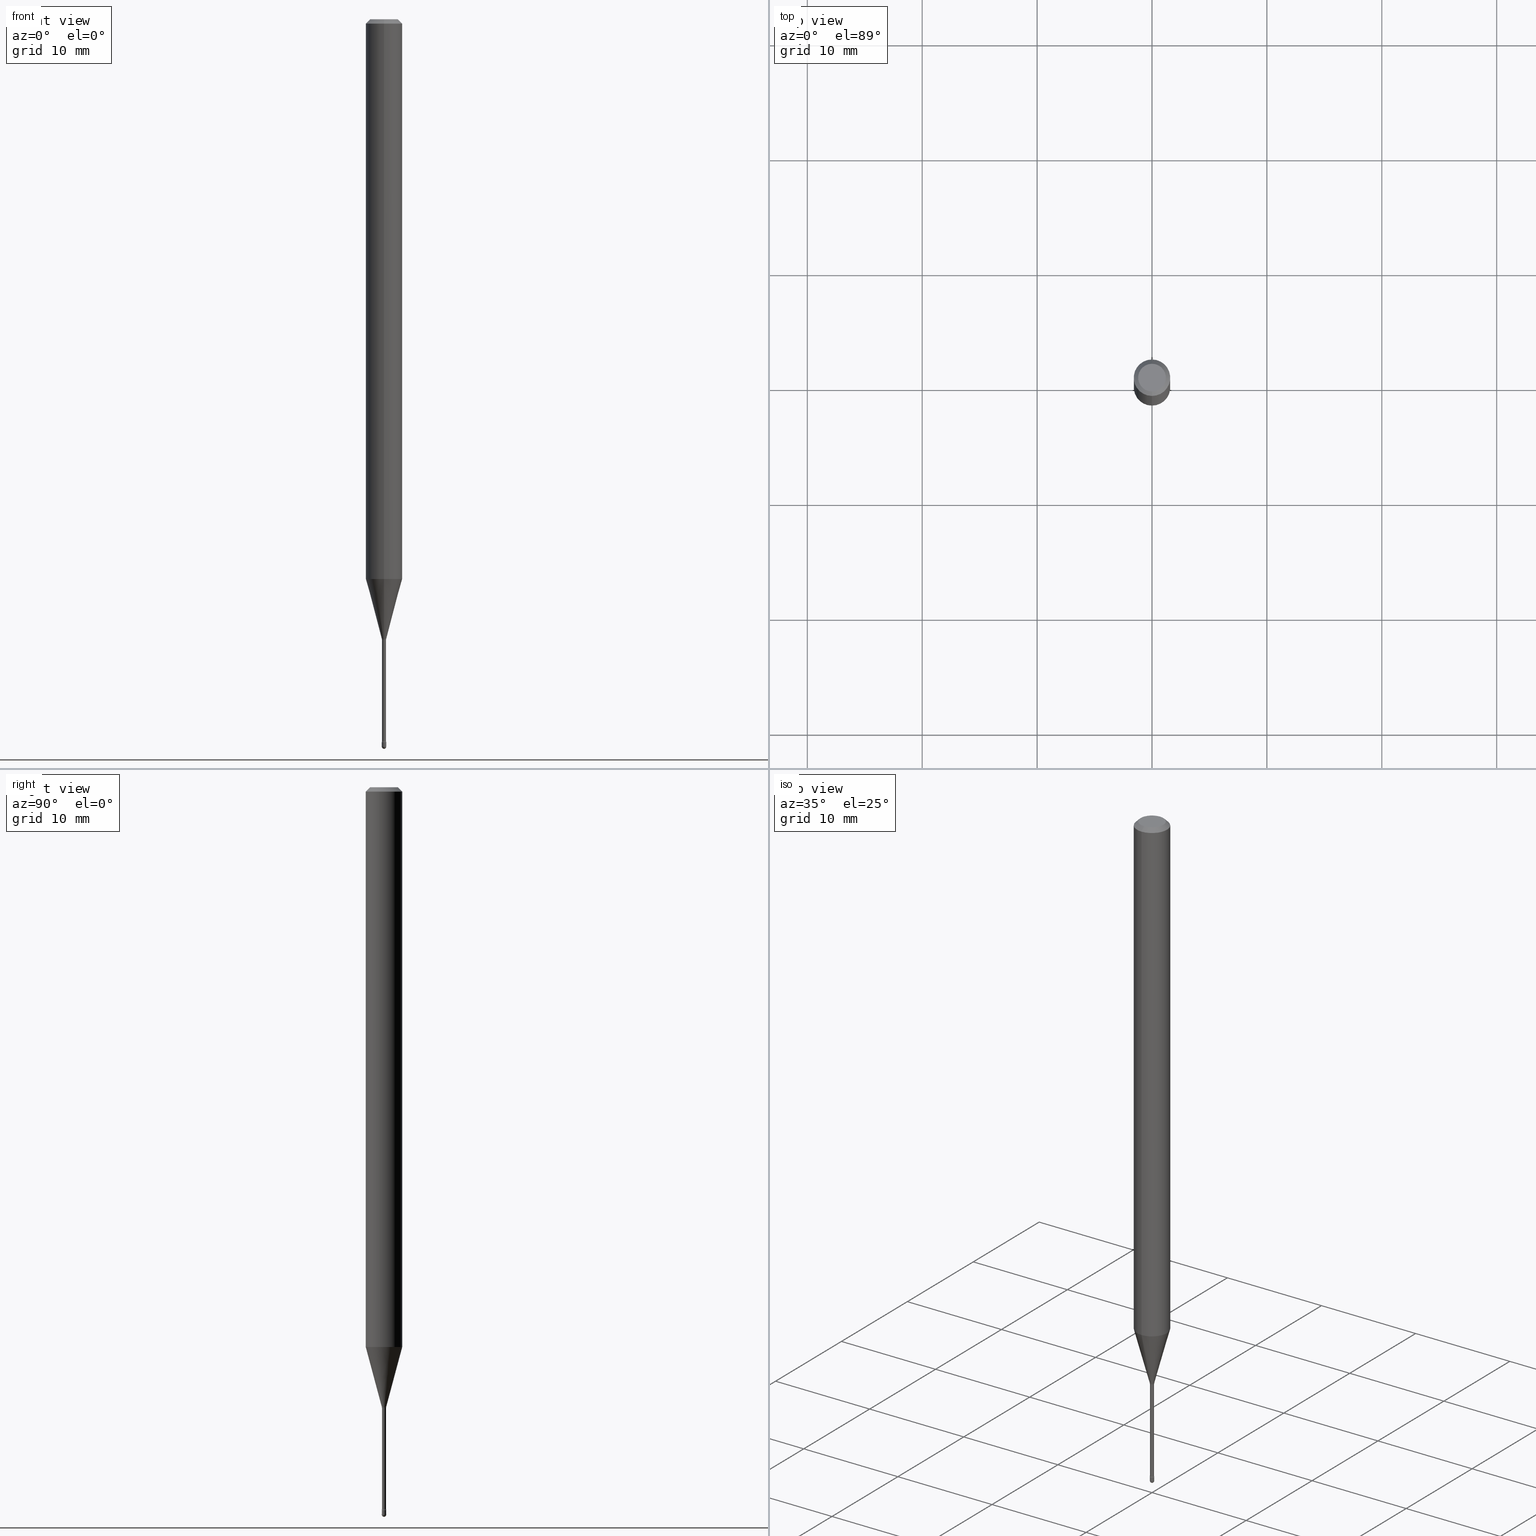
[diagram: canonical four-view strip — front | top / right | iso, engineering-drawing reading convention]
A machine part, canonical four-view strip (front | top / right | iso — engineering-drawing reading convention). The complete STEP part file that produces these views, byte-faithful:
ISO-10303-21;
HEADER;
FILE_DESCRIPTION (( 'STEP AP203' ),
    '1' );
FILE_NAME ('09416.STEP',
    '2024-04-09T22:54:44',
    ( '' ),
    ( '' ),
    'SwSTEP 2.0',
    'SolidWorks 2023',
    '' );
FILE_SCHEMA (( 'CONFIG_CONTROL_DESIGN' ));
ENDSEC;

DATA;
#1 = ORIENTED_EDGE ( 'NONE', *, *, #65, .T. ) ;
#2 = AXIS2_PLACEMENT_3D ( 'NONE', #550, #464, #511 ) ;
#3 = FACE_OUTER_BOUND ( 'NONE', #189, .T. ) ;
#4 = CC_DESIGN_SECURITY_CLASSIFICATION ( #139, ( #501 ) ) ;
#5 = EDGE_LOOP ( 'NONE', ( #183, #408, #120, #538 ) ) ;
#6 = DIRECTION ( 'NONE',  ( -2.445435438683695197E-29, 3.491529123004369972E-15, 1.000000000000000000 ) ) ;
#7 = ADVANCED_FACE ( 'NONE', ( #83 ), #306, .T. ) ;
#8 = CC_DESIGN_PERSON_AND_ORGANIZATION_ASSIGNMENT ( #503, #428, ( #501 ) ) ;
#9 = ORIENTED_EDGE ( 'NONE', *, *, #393, .T. ) ;
#10 = DIRECTION ( 'NONE',  ( -2.438088387897960049E-29, 3.491481338843145188E-15, 1.000000000000000000 ) ) ;
#11 = ORIENTED_EDGE ( 'NONE', *, *, #390, .F. ) ;
#12 = CARTESIAN_POINT ( 'NONE',  ( -4.922988687768817558E-17, -0.007050000000000000711, 5.026886792084268241E-16 ) ) ;
#13 = LOCAL_TIME ( 18, 54, 44.00000000000000000, #300 ) ;
#14 = ORIENTED_EDGE ( 'NONE', *, *, #318, .F. ) ;
#15 = EDGE_CURVE ( 'NONE', #209, #173, #378, .T. ) ;
#16 = CARTESIAN_POINT ( 'NONE',  ( 5.372493636223851277E-17, 0.007561112605656562270, -2.123092501787273267 ) ) ;
#17 = CARTESIAN_POINT ( 'NONE',  ( -3.773273898774340269E-16, -0.04749999999999999362, 8.310287101882037742E-17 ) ) ;
#18 = CLOSED_SHELL ( 'NONE', ( #185, #476, #376, #354, #419, #145, #33, #49, #533, #539, #62, #478, #330, #516 ) ) ;
#19 = CALENDAR_DATE ( 2024, 9, 4 ) ;
#20 = AXIS2_PLACEMENT_3D ( 'NONE', #174, #520, #555 ) ;
#21 = EDGE_CURVE ( 'NONE', #104, #424, #344, .T. ) ;
#22 = DIRECTION ( 'NONE',  ( -2.445435438683695197E-29, 3.491529123004369972E-15, 1.000000000000000000 ) ) ;
#23 = EDGE_CURVE ( 'NONE', #548, #559, #527, .T. ) ;
#24 = DIRECTION ( 'NONE',  ( -2.445435438683695197E-29, 3.491529123004369972E-15, 1.000000000000000000 ) ) ;
#25 = DIRECTION ( 'NONE',  ( -2.445435438683695197E-29, 3.491529123004369972E-15, 1.000000000000000000 ) ) ;
#26 = VERTEX_POINT ( 'NONE', #444 ) ;
#27 = PERSON_AND_ORGANIZATION ( #82, #443 ) ;
#28 = CARTESIAN_POINT ( 'NONE',  ( 6.095330999416453954E-29, -8.702517237066541600E-15, -2.492500000000000160 ) ) ;
#29 = VERTEX_POINT ( 'NONE', #441 ) ;
#30 = PERSON_AND_ORGANIZATION ( #82, #443 ) ;
#31 = CIRCLE ( 'NONE', #179, 0.01500000000000001506 ) ;
#32 = AXIS2_PLACEMENT_3D ( 'NONE', #54, #90, #225 ) ;
#33 = ADVANCED_FACE ( 'NONE', ( #51 ), #535, .T. ) ;
#34 = LOCAL_TIME ( 18, 54, 44.00000000000000000, #417 ) ;
#35 = DIRECTION ( 'NONE',  ( 1.000000000000000000, 0.000000000000000000, 0.000000000000000000 ) ) ;
#36 = EDGE_LOOP ( 'NONE', ( #456, #381 ) ) ;
#37 = PERSON_AND_ORGANIZATION_ROLE ( 'creator' ) ;
#38 = DIRECTION ( 'NONE',  ( -2.445435438683695197E-29, 3.491529123004369972E-15, 1.000000000000000000 ) ) ;
#39 = CARTESIAN_POINT ( 'NONE',  ( 3.668153158025562537E-31, -5.237293684506583702E-17, -0.01500000000000008271 ) ) ;
#40 = DIRECTION ( 'NONE',  ( 1.000000000000000000, -6.982962677686266711E-15, 4.876176775795935793E-29 ) ) ;
#41 = ORIENTED_EDGE ( 'NONE', *, *, #465, .F. ) ;
#42 = FACE_OUTER_BOUND ( 'NONE', #36, .T. ) ;
#43 = DIRECTION ( 'NONE',  ( -2.445435438683694917E-29, 3.491529123004369972E-15, 1.000000000000000000 ) ) ;
#44 = DIRECTION ( 'NONE',  ( -6.982962677686265922E-15, -1.000000000000000000, 3.491529123004369972E-15 ) ) ;
#45 = DIRECTION ( 'NONE',  ( 0.000000000000000000, 0.000000000000000000, 1.000000000000000000 ) ) ;
#46 = AXIS2_PLACEMENT_3D ( 'NONE', #305, #45, #35 ) ;
#47 = EDGE_CURVE ( 'NONE', #407, #29, #226, .T. ) ;
#48 = DIRECTION ( 'NONE',  ( -6.982962677686266711E-15, -1.000000000000000000, 3.491529123004370367E-15 ) ) ;
#49 = ADVANCED_FACE ( 'NONE', ( #309 ), #258, .T. ) ;
#50 = CARTESIAN_POINT ( 'NONE',  ( -4.364351673553912750E-16, -0.06250000000000005551, -0.01499999999999986587 ) ) ;
#51 = FACE_OUTER_BOUND ( 'NONE', #334, .T. ) ;
#52 = DIRECTION ( 'NONE',  ( -1.000000000000000000, 6.982962677686265922E-15, -4.883557194083112340E-29 ) ) ;
#53 = CARTESIAN_POINT ( 'NONE',  ( 5.237222008270768592E-17, 0.007499999999991259318, -2.492500000000000160 ) ) ;
#54 = CARTESIAN_POINT ( 'NONE',  ( 5.191885643474223974E-29, -7.412839300822471210E-15, -2.123092501787273267 ) ) ;
#55 = EDGE_CURVE ( 'NONE', #447, #424, #31, .T. ) ;
#56 = PERSON_AND_ORGANIZATION ( #82, #443 ) ;
#57 = VECTOR ( 'NONE', #84, 39.37007874015748143 ) ;
#58 = CARTESIAN_POINT ( 'NONE',  ( 3.668153158025562537E-31, -5.237293684506583702E-17, -0.01500000000000008271 ) ) ;
#59 =( GEOMETRIC_REPRESENTATION_CONTEXT ( 3 ) GLOBAL_UNCERTAINTY_ASSIGNED_CONTEXT ( ( #238 ) ) GLOBAL_UNIT_ASSIGNED_CONTEXT ( ( #248, #260, #311 ) ) REPRESENTATION_CONTEXT ( 'NONE', 'WORKASPACE' ) );
#60 = ORIENTED_EDGE ( 'NONE', *, *, #176, .T. ) ;
#61 = EDGE_LOOP ( 'NONE', ( #338, #239, #452, #328 ) ) ;
#62 = ADVANCED_FACE ( 'NONE', ( #513 ), #519, .F. ) ;
#63 = ORIENTED_EDGE ( 'NONE', *, *, #55, .F. ) ;
#64 = DIRECTION ( 'NONE',  ( 6.982962677686265922E-15, 1.000000000000000000, 0.000000000000000000 ) ) ;
#65 = EDGE_CURVE ( 'NONE', #396, #209, #498, .T. ) ;
#66 = VECTOR ( 'NONE', #545, 39.37007874015748143 ) ;
#67 = AXIS2_PLACEMENT_3D ( 'NONE', #89, #212, #342 ) ;
#68 = ORIENTED_EDGE ( 'NONE', *, *, #221, .F. ) ;
#69 = CARTESIAN_POINT ( 'NONE',  ( -5.279896712708277390E-17, -0.007561112605671388952, -2.123092501787273267 ) ) ;
#70 = DIRECTION ( 'NONE',  ( -6.982962677686265133E-15, -1.000000000000000000, 3.491529123004366422E-15 ) ) ;
#71 = EDGE_CURVE ( 'NONE', #26, #110, #418, .T. ) ;
#72 = CARTESIAN_POINT ( 'NONE',  ( 2.489070731061741995E-16, 0.007561112605656562270, -2.123092501787273267 ) ) ;
#73 = CIRCLE ( 'NONE', #507, 0.01500000000000001506 ) ;
#74 = ORIENTED_EDGE ( 'NONE', *, *, #526, .T. ) ;
#75 = CARTESIAN_POINT ( 'NONE',  ( 6.113992702821284393E-29, -8.728244104558185096E-15, -2.500000000000000000 ) ) ;
#76 = ORIENTED_EDGE ( 'NONE', *, *, #256, .T. ) ;
#77 = DIRECTION ( 'NONE',  ( 1.000000000000000000, -6.982962677686269077E-15, 0.000000000000000000 ) ) ;
#78 = DIRECTION ( 'NONE',  ( -2.445468806185136597E-29, 3.491481338843145583E-15, 1.000000000000000000 ) ) ;
#79 = ORIENTED_EDGE ( 'NONE', *, *, #322, .T. ) ;
#80 = EDGE_CURVE ( 'NONE', #110, #166, #287, .T. ) ;
#81 = COORDINATED_UNIVERSAL_TIME_OFFSET ( 5, 0, .BEHIND. ) ;
#82 = PERSON ( 'UNSPECIFIED', 'UNSPECIFIED', 'UNSPECIFIED', ('UNSPECIFIED'), ('UNSPECIFIED'), ('UNSPECIFIED') ) ;
#83 = FACE_OUTER_BOUND ( 'NONE', #5, .T. ) ;
#84 = DIRECTION ( 'NONE',  ( -2.445435438683695197E-29, 3.491529123004369972E-15, 1.000000000000000000 ) ) ;
#85 = APPROVAL_STATUS ( 'not_yet_approved' ) ;
#86 = AXIS2_PLACEMENT_3D ( 'NONE', #92, #482, #268 ) ;
#87 = AXIS2_PLACEMENT_3D ( 'NONE', #141, #279, #406 ) ;
#88 = AXIS2_PLACEMENT_3D ( 'NONE', #336, #78, #40 ) ;
#89 = CARTESIAN_POINT ( 'NONE',  ( 6.057343581619512225E-29, -8.648517637681823363E-15, -2.476999999999999869 ) ) ;
#90 = DIRECTION ( 'NONE',  ( -2.445435438683695197E-29, 3.491529123004369972E-15, 1.000000000000000000 ) ) ;
#91 = CARTESIAN_POINT ( 'NONE',  ( 1.566746732351540830E-16, 0.02204999999999257207, -2.126974787463811190 ) ) ;
#92 = CARTESIAN_POINT ( 'NONE',  ( 6.057343581619512225E-29, -8.648517637681823363E-15, -2.476999999999999869 ) ) ;
#93 = DIRECTION ( 'NONE',  ( -2.445435438683695197E-29, 3.491529123004369972E-15, 1.000000000000000000 ) ) ;
#94 = EDGE_CURVE ( 'NONE', #166, #110, #321, .T. ) ;
#95 = MANIFOLD_SOLID_BREP ( 'Body-Move/Copy2[2]', #18 ) ;
#96 = ORIENTED_EDGE ( 'NONE', *, *, #517, .F. ) ;
#97 = CARTESIAN_POINT ( 'NONE',  ( 5.191885643474223974E-29, -7.412839300822471210E-15, -2.123092501787273267 ) ) ;
#98 = AXIS2_PLACEMENT_3D ( 'NONE', #250, #134, #480 ) ;
#99 = AXIS2_PLACEMENT_3D ( 'NONE', #394, #38, #561 ) ;
#100 = AXIS2_PLACEMENT_3D ( 'NONE', #91, #557, #172 ) ;
#101 = ORIENTED_EDGE ( 'NONE', *, *, #221, .T. ) ;
#102 = DIRECTION ( 'NONE',  ( -2.445468806185136597E-29, 3.491481338843145583E-15, 1.000000000000000000 ) ) ;
#103 = EDGE_CURVE ( 'NONE', #436, #484, #461, .T. ) ;
#104 = VERTEX_POINT ( 'NONE', #348 ) ;
#105 = ORIENTED_EDGE ( 'NONE', *, *, #94, .F. ) ;
#106 = EDGE_LOOP ( 'NONE', ( #474, #164, #355, #175 ) ) ;
#107 = AXIS2_PLACEMENT_3D ( 'NONE', #169, #264, #469 ) ;
#108 = AXIS2_PLACEMENT_3D ( 'NONE', #272, #10, #448 ) ;
#109 = EDGE_LOOP ( 'NONE', ( #60, #147 ) ) ;
#110 = VERTEX_POINT ( 'NONE', #50 ) ;
#111 = CARTESIAN_POINT ( 'NONE',  ( -4.287811248607203282E-16, -0.06250000000000005551, -0.01499999999999986587 ) ) ;
#112 = VERTEX_POINT ( 'NONE', #445 ) ;
#113 = CARTESIAN_POINT ( 'NONE',  ( -1.169113584055446105E-44, 1.669184350826100908E-30, 4.780733988912460139E-16 ) ) ;
#114 = CIRCLE ( 'NONE', #227, 0.06250000000000000000 ) ;
#115 = CIRCLE ( 'NONE', #537, 0.007050000000000001578 ) ;
#116 = CC_DESIGN_PERSON_AND_ORGANIZATION_ASSIGNMENT ( #124, #206, ( #501 ) ) ;
#117 = PERSON_AND_ORGANIZATION ( #82, #443 ) ;
#118 = DIRECTION ( 'NONE',  ( 1.000000000000000000, -6.982962677686269077E-15, 0.000000000000000000 ) ) ;
#119 = SPHERICAL_SURFACE ( 'NONE', #412, 0.007499999999999925129 ) ;
#120 = ORIENTED_EDGE ( 'NONE', *, *, #253, .F. ) ;
#121 = CARTESIAN_POINT ( 'NONE',  ( -4.922988687762769829E-17, -0.007050000000008637899, -2.473353426265656907 ) ) ;
#122 = ORIENTED_EDGE ( 'NONE', *, *, #488, .F. ) ;
#123 = CIRCLE ( 'NONE', #401, 0.007499999999999998855 ) ;
#124 = PERSON_AND_ORGANIZATION ( #82, #443 ) ;
#125 = CIRCLE ( 'NONE', #326, 0.007499999999999998855 ) ;
#126 = PRODUCT_DEFINITION_SHAPE ( 'NONE', 'NONE',  #246 ) ;
#127 = COORDINATED_UNIVERSAL_TIME_OFFSET ( 5, 0, .BEHIND. ) ;
#128 = FACE_OUTER_BOUND ( 'NONE', #61, .T. ) ;
#129 = DIRECTION ( 'NONE',  ( -6.982962677686265922E-15, -1.000000000000000000, 3.491529123004369972E-15 ) ) ;
#130 = CARTESIAN_POINT ( 'NONE',  ( 6.048426120979777500E-29, -8.635785519289182555E-15, -2.473353426265656907 ) ) ;
#131 = ORIENTED_EDGE ( 'NONE', *, *, #23, .F. ) ;
#132 = CONICAL_SURFACE ( 'NONE', #422, 0.06250000000000000000, 0.7853981633974483900 ) ;
#133 = APPROVAL_PERSON_ORGANIZATION ( #27, #497, #331 ) ;
#134 = DIRECTION ( 'NONE',  ( -2.445435438683695197E-29, 3.491529123004369972E-15, 1.000000000000000000 ) ) ;
#135 = CARTESIAN_POINT ( 'NONE',  ( -1.169113584055446105E-44, 1.669184350826100908E-30, 4.780733988912460139E-16 ) ) ;
#136 = LINE ( 'NONE', #530, #218 ) ;
#137 = CARTESIAN_POINT ( 'NONE',  ( 4.440892098501097506E-16, 0.06249999999999995143, -0.01500000000000030129 ) ) ;
#138 = AXIS2_PLACEMENT_3D ( 'NONE', #232, #323, #118 ) ;
#139 = SECURITY_CLASSIFICATION ( '', '', #383 ) ;
#140 = APPROVAL ( #314, 'UNSPECIFIED' ) ;
#141 = CARTESIAN_POINT ( 'NONE',  ( -1.169113584055446105E-44, 1.669184350826100908E-30, 4.780733988912460139E-16 ) ) ;
#142 = DIRECTION ( 'NONE',  ( -6.982962677686265133E-15, -1.000000000000000000, 0.000000000000000000 ) ) ;
#143 = AXIS2_PLACEMENT_3D ( 'NONE', #251, #420, #523 ) ;
#144 = CARTESIAN_POINT ( 'NONE',  ( 4.364351673553919652E-16, 0.06249999999999995143, -0.01500000000000030129 ) ) ;
#145 = ADVANCED_FACE ( 'NONE', ( #388 ), #333, .T. ) ;
#146 = ORIENTED_EDGE ( 'NONE', *, *, #176, .F. ) ;
#147 = ORIENTED_EDGE ( 'NONE', *, *, #465, .T. ) ;
#148 = EDGE_LOOP ( 'NONE', ( #275, #186, #449, #105 ) ) ;
#149 = DIRECTION ( 'NONE',  ( -2.445435438683695197E-29, 3.491529123004369972E-15, 1.000000000000000000 ) ) ;
#150 = EDGE_CURVE ( 'NONE', #484, #436, #536, .T. ) ;
#151 = DIRECTION ( 'NONE',  ( -2.445468806185136877E-29, 3.491481338843145188E-15, 1.000000000000000000 ) ) ;
#152 = EDGE_CURVE ( 'NONE', #173, #199, #136, .T. ) ;
#153 = AXIS2_PLACEMENT_3D ( 'NONE', #518, #395, #552 ) ;
#154 = DATE_AND_TIME ( #546, #560 ) ;
#155 = LINE ( 'NONE', #111, #66 ) ;
#156 = DIRECTION ( 'NONE',  ( -6.982962677686265922E-15, -1.000000000000000000, 3.491529123004369972E-15 ) ) ;
#157 = EDGE_LOOP ( 'NONE', ( #163, #96 ) ) ;
#158 = CALENDAR_DATE ( 2024, 9, 4 ) ;
#159 = CC_DESIGN_DATE_AND_TIME_ASSIGNMENT ( #468, #463, ( #139 ) ) ;
#160 = VERTEX_POINT ( 'NONE', #564 ) ;
#161 = FACE_OUTER_BOUND ( 'NONE', #182, .T. ) ;
#162 = DIRECTION ( 'NONE',  ( 1.000000000000000000, -6.982962677686269077E-15, 0.000000000000000000 ) ) ;
#163 = ORIENTED_EDGE ( 'NONE', *, *, #21, .F. ) ;
#164 = ORIENTED_EDGE ( 'NONE', *, *, #55, .T. ) ;
#165 = CARTESIAN_POINT ( 'NONE',  ( 5.009326287114761323E-17, 0.007049999999992574359, -2.126974787463811190 ) ) ;
#166 = VERTEX_POINT ( 'NONE', #137 ) ;
#167 = DIRECTION ( 'NONE',  ( 6.982962677686265922E-15, 1.000000000000000000, -3.491529123004369972E-15 ) ) ;
#168 = EDGE_CURVE ( 'NONE', #402, #447, #492, .T. ) ;
#169 = CARTESIAN_POINT ( 'NONE',  ( 5.201379522450723382E-29, -7.426394414325925809E-15, -2.126974787463811190 ) ) ;
#170 = AXIS2_PLACEMENT_3D ( 'NONE', #193, #195, #324 ) ;
#171 = ORIENTED_EDGE ( 'NONE', *, *, #103, .T. ) ;
#172 = DIRECTION ( 'NONE',  ( 7.105427357601001859E-15, 1.000000000000000000, 0.000000000000000000 ) ) ;
#173 = VERTEX_POINT ( 'NONE', #262 ) ;
#174 = CARTESIAN_POINT ( 'NONE',  ( 5.191885643474223974E-29, -7.412839300822471210E-15, -2.123092501787273267 ) ) ;
#175 = ORIENTED_EDGE ( 'NONE', *, *, #191, .F. ) ;
#176 = EDGE_CURVE ( 'NONE', #453, #199, #277, .T. ) ;
#177 = DIRECTION ( 'NONE',  ( 1.000000000000000000, -7.105427357601001070E-15, 4.926316093729283310E-29 ) ) ;
#178 = FACE_OUTER_BOUND ( 'NONE', #269, .T. ) ;
#179 = AXIS2_PLACEMENT_3D ( 'NONE', #554, #177, #219 ) ;
#180 = AXIS2_PLACEMENT_3D ( 'NONE', #391, #303, #271 ) ;
#181 = LOCAL_TIME ( 18, 54, 44.00000000000000000, #127 ) ;
#182 = EDGE_LOOP ( 'NONE', ( #466, #565, #282, #9, #41 ) ) ;
#183 = ORIENTED_EDGE ( 'NONE', *, *, #65, .F. ) ;
#184 = EDGE_CURVE ( 'NONE', #559, #548, #307, .T. ) ;
#185 = ADVANCED_FACE ( 'NONE', ( #210 ), #352, .F. ) ;
#186 = ORIENTED_EDGE ( 'NONE', *, *, #235, .T. ) ;
#187 = CIRCLE ( 'NONE', #549, 0.01500000000000002720 ) ;
#188 = APPROVAL_PERSON_ORGANIZATION ( #30, #562, #304 ) ;
#189 = EDGE_LOOP ( 'NONE', ( #494, #364, #216, #404 ) ) ;
#190 = DIRECTION ( 'NONE',  ( -6.982962677686265922E-15, -1.000000000000000000, 3.491529123004369183E-15 ) ) ;
#191 = EDGE_CURVE ( 'NONE', #402, #104, #73, .T. ) ;
#192 = CYLINDRICAL_SURFACE ( 'NONE', #392, 0.06250000000000000000 ) ;
#193 = CARTESIAN_POINT ( 'NONE',  ( 2.023310220374665440E-45, -2.889285917662965860E-31, -8.274476232388719231E-17 ) ) ;
#194 = AXIS2_PLACEMENT_3D ( 'NONE', #247, #426, #356 ) ;
#195 = DIRECTION ( 'NONE',  ( -2.445435438683695197E-29, 3.491529123004369972E-15, 1.000000000000000000 ) ) ;
#196 = EDGE_LOOP ( 'NONE', ( #171, #281, #416, #366 ) ) ;
#197 = LINE ( 'NONE', #502, #233 ) ;
#198 = PRODUCT ( '09416', '09416', '', ( #298 ) ) ;
#199 = VERTEX_POINT ( 'NONE', #525 ) ;
#200 = DIRECTION ( 'NONE',  ( -2.445435438683695197E-29, 3.491529123004369972E-15, 1.000000000000000000 ) ) ;
#201 = CYLINDRICAL_SURFACE ( 'NONE', #2, 0.007499999999999998855 ) ;
#202 = CYLINDRICAL_SURFACE ( 'NONE', #88, 0.007499999999999998855 ) ;
#203 = ORIENTED_EDGE ( 'NONE', *, *, #71, .F. ) ;
#204 = CLOSED_SHELL ( 'NONE', ( #493, #7, #347, #438, #284 ) ) ;
#205 = VECTOR ( 'NONE', #293, 39.37007874015748854 ) ;
#206 = PERSON_AND_ORGANIZATION_ROLE ( 'creator' ) ;
#207 = TOROIDAL_SURFACE ( 'NONE', #458, 0.02205000000000000016, 0.01500000000000002720 ) ;
#208 = PERSON_AND_ORGANIZATION_ROLE ( 'design_owner' ) ;
#209 = VERTEX_POINT ( 'NONE', #53 ) ;
#210 = FACE_OUTER_BOUND ( 'NONE', #414, .T. ) ;
#211 = ORIENTED_EDGE ( 'NONE', *, *, #278, .F. ) ;
#212 = DIRECTION ( 'NONE',  ( -2.445435438683695197E-29, 3.491529123004369972E-15, 1.000000000000000000 ) ) ;
#213 = CC_DESIGN_PERSON_AND_ORGANIZATION_ASSIGNMENT ( #117, #37, ( #246 ) ) ;
#214 = CARTESIAN_POINT ( 'NONE',  ( 6.095330999416453954E-29, -8.702517237066541600E-15, -2.492500000000000160 ) ) ;
#215 = DIRECTION ( 'NONE',  ( -2.445435438683695197E-29, 3.491529123004369972E-15, 1.000000000000000000 ) ) ;
#216 = ORIENTED_EDGE ( 'NONE', *, *, #80, .T. ) ;
#217 = DIRECTION ( 'NONE',  ( -1.000000000000000000, 6.982962677686265922E-15, -4.883557194083112340E-29 ) ) ;
#218 = VECTOR ( 'NONE', #483, 39.37007874015748143 ) ;
#219 = DIRECTION ( 'NONE',  ( 7.105427357601001859E-15, 1.000000000000000000, 0.000000000000000000 ) ) ;
#220 = CARTESIAN_POINT ( 'NONE',  ( 5.201450494285011202E-29, -7.426292778619762925E-15, -2.126974787463811190 ) ) ;
#221 = EDGE_CURVE ( 'NONE', #447, #548, #398, .T. ) ;
#222 = DIRECTION ( 'NONE',  ( -2.445435438683695197E-29, 3.491529123004369972E-15, 1.000000000000000000 ) ) ;
#223 = LINE ( 'NONE', #12, #325 ) ;
#224 = EDGE_CURVE ( 'NONE', #26, #112, #345, .T. ) ;
#225 = DIRECTION ( 'NONE',  ( -6.982962677686265133E-15, -1.000000000000000000, 0.000000000000000000 ) ) ;
#226 = CIRCLE ( 'NONE', #410, 0.04749999999999999362 ) ;
#227 = AXIS2_PLACEMENT_3D ( 'NONE', #236, #244, #286 ) ;
#228 = DIRECTION ( 'NONE',  ( 2.445435438683695197E-29, -3.491529123004369972E-15, -1.000000000000000000 ) ) ;
#229 = APPLICATION_CONTEXT ( 'configuration controlled 3d designs of mechanical parts and assemblies' ) ;
#230 = ORIENTED_EDGE ( 'NONE', *, *, #103, .F. ) ;
#231 = AXIS2_PLACEMENT_3D ( 'NONE', #135, #222, #397 ) ;
#232 = CARTESIAN_POINT ( 'NONE',  ( 6.095330999416453954E-29, -8.702517237066541600E-15, -2.492500000000000160 ) ) ;
#233 = VECTOR ( 'NONE', #151, 39.37007874015748143 ) ;
#234 = DIRECTION ( 'NONE',  ( -2.445468806185136597E-29, 3.491481338843145583E-15, 1.000000000000000000 ) ) ;
#235 = EDGE_CURVE ( 'NONE', #112, #26, #114, .T. ) ;
#236 = CARTESIAN_POINT ( 'NONE',  ( 4.690486475307307994E-29, -6.696954607973137123E-15, -1.918057782720306248 ) ) ;
#237 = DIRECTION ( 'NONE',  ( -2.445435438683695197E-29, 3.491529123004369972E-15, 1.000000000000000000 ) ) ;
#238 = UNCERTAINTY_MEASURE_WITH_UNIT (LENGTH_MEASURE( 1.000000000000000082E-05 ), #248, 'distance_accuracy_value', 'NONE');
#239 = ORIENTED_EDGE ( 'NONE', *, *, #363, .F. ) ;
#240 = FACE_OUTER_BOUND ( 'NONE', #510, .T. ) ;
#241 = DIRECTION ( 'NONE',  ( -1.000000000000000000, 6.982962677686265922E-15, -4.883557194083112901E-29 ) ) ;
#242 = VECTOR ( 'NONE', #450, 39.37007874015748143 ) ;
#243 = APPROVAL_DATE_TIME ( #154, #497 ) ;
#244 = DIRECTION ( 'NONE',  ( -2.445435438683695197E-29, 3.491529123004369972E-15, 1.000000000000000000 ) ) ;
#245 = ORIENTED_EDGE ( 'NONE', *, *, #152, .T. ) ;
#246 = PRODUCT_DEFINITION ( 'UNKNOWN', '', #501, #505 ) ;
#247 = CARTESIAN_POINT ( 'NONE',  ( 6.095330999416453954E-29, -8.702517237066541600E-15, -2.492500000000000160 ) ) ;
#248 =( CONVERSION_BASED_UNIT ( 'INCH', #308 ) LENGTH_UNIT ( ) NAMED_UNIT ( #373 ) );
#249 = DATE_AND_TIME ( #19, #432 ) ;
#250 = CARTESIAN_POINT ( 'NONE',  ( 5.191885643474223974E-29, -7.412839300822471210E-15, -2.123092501787273267 ) ) ;
#251 = CARTESIAN_POINT ( 'NONE',  ( 4.690486475307307994E-29, -6.696954607973137123E-15, -1.918057782720306248 ) ) ;
#252 = VECTOR ( 'NONE', #377, 39.37007874015748143 ) ;
#253 = EDGE_CURVE ( 'NONE', #173, #299, #430, .T. ) ;
#254 = SHAPE_DEFINITION_REPRESENTATION ( #126, #541 ) ;
#255 = CIRCLE ( 'NONE', #100, 0.01500000000000002720 ) ;
#256 = EDGE_CURVE ( 'NONE', #436, #26, #547, .T. ) ;
#257 = DIRECTION ( 'NONE',  ( -2.445468806185136597E-29, 3.491481338843145583E-15, 1.000000000000000000 ) ) ;
#258 = CYLINDRICAL_SURFACE ( 'NONE', #231, 0.06250000000000000000 ) ;
#259 = CARTESIAN_POINT ( 'NONE',  ( 6.057426232920582713E-29, -8.648399276314471045E-15, -2.476999999999999869 ) ) ;
#260 =( NAMED_UNIT ( * ) PLANE_ANGLE_UNIT ( ) SI_UNIT ( $, .RADIAN. ) );
#261 = DIRECTION ( 'NONE',  ( -2.445435438683695197E-29, 3.491529123004369972E-15, 1.000000000000000000 ) ) ;
#262 = CARTESIAN_POINT ( 'NONE',  ( -0.007499999999999998855, -8.622167551508499156E-15, -2.492500000000000160 ) ) ;
#263 = ORIENTED_EDGE ( 'NONE', *, *, #534, .F. ) ;
#264 = DIRECTION ( 'NONE',  ( -2.445435438683695197E-29, 3.491529123004369972E-15, 1.000000000000000000 ) ) ;
#265 = EDGE_CURVE ( 'NONE', #112, #166, #413, .T. ) ;
#266 = TOROIDAL_SURFACE ( 'NONE', #457, 0.02205000000000001750, 0.01500000000000001506 ) ;
#267 = CIRCLE ( 'NONE', #67, 0.007499999999999999722 ) ;
#268 = DIRECTION ( 'NONE',  ( -6.982962677686265922E-15, -1.000000000000000000, 0.000000000000000000 ) ) ;
#269 = EDGE_LOOP ( 'NONE', ( #68, #74, #79, #131 ) ) ;
#270 = APPLICATION_CONTEXT ( 'configuration controlled 3d designs of mechanical parts and assemblies' ) ;
#271 = DIRECTION ( 'NONE',  ( 6.982962677686266711E-15, 1.000000000000000000, 0.000000000000000000 ) ) ;
#272 = CARTESIAN_POINT ( 'NONE',  ( 6.057426232920582713E-29, -8.648399276314471045E-15, -2.476999999999999869 ) ) ;
#273 = CARTESIAN_POINT ( 'NONE',  ( 6.048426120979777500E-29, -8.635785519289182555E-15, -2.473353426265656907 ) ) ;
#274 = MANIFOLD_SOLID_BREP ( 'Body-Move/Copy2[1]', #204 ) ;
#275 = ORIENTED_EDGE ( 'NONE', *, *, #265, .F. ) ;
#276 = EDGE_LOOP ( 'NONE', ( #357, #1, #211, #122 ) ) ;
#277 = CIRCLE ( 'NONE', #316, 0.007499999999999999722 ) ;
#278 = EDGE_CURVE ( 'NONE', #160, #209, #123, .T. ) ;
#279 = DIRECTION ( 'NONE',  ( -2.445435438683695197E-29, 3.491529123004369972E-15, 1.000000000000000000 ) ) ;
#280 = ORIENTED_EDGE ( 'NONE', *, *, #265, .T. ) ;
#281 = ORIENTED_EDGE ( 'NONE', *, *, #390, .T. ) ;
#282 = ORIENTED_EDGE ( 'NONE', *, *, #488, .T. ) ;
#283 = FACE_OUTER_BOUND ( 'NONE', #106, .T. ) ;
#284 = ADVANCED_FACE ( 'NONE', ( #161 ), #201, .T. ) ;
#285 = ORIENTED_EDGE ( 'NONE', *, *, #168, .T. ) ;
#286 = DIRECTION ( 'NONE',  ( -6.982962677686265922E-15, -1.000000000000000000, 4.370956789862821150E-15 ) ) ;
#287 = CIRCLE ( 'NONE', #473, 0.06250000000000000000 ) ;
#288 = CARTESIAN_POINT ( 'NONE',  ( 5.169198402660787211E-17, 0.007049999999991365257, -2.473353426265656907 ) ) ;
#289 = FACE_OUTER_BOUND ( 'NONE', #349, .T. ) ;
#290 = APPROVAL_DATE_TIME ( #327, #562 ) ;
#291 = FACE_OUTER_BOUND ( 'NONE', #495, .T. ) ;
#292 = EDGE_CURVE ( 'NONE', #396, #299, #499, .T. ) ;
#293 = DIRECTION ( 'NONE',  ( 1.839019923739597554E-15, 0.2588190451025245697, 0.9659258262890670910 ) ) ;
#294 = VECTOR ( 'NONE', #454, 39.37007874015748143 ) ;
#295 = EDGE_LOOP ( 'NONE', ( #263, #230, #462, #411 ) ) ;
#296 = CONICAL_SURFACE ( 'NONE', #153, 0.06250000000000000000, 0.7853981633974483900 ) ;
#297 = DIRECTION ( 'NONE',  ( -2.445468806185136597E-29, 3.491481338843145583E-15, 1.000000000000000000 ) ) ;
#298 = MECHANICAL_CONTEXT ( 'NONE', #270, 'mechanical' ) ;
#299 = VERTEX_POINT ( 'NONE', #531 ) ;
#300 = COORDINATED_UNIVERSAL_TIME_OFFSET ( 5, 0, .BEHIND. ) ;
#301 = DATE_AND_TIME ( #500, #34 ) ;
#302 = DIRECTION ( 'NONE',  ( 2.445435438683694917E-29, -3.491529123004369972E-15, -1.000000000000000000 ) ) ;
#303 = DIRECTION ( 'NONE',  ( 1.000000000000000000, -6.982962677686265922E-15, 4.883557194083112340E-29 ) ) ;
#304 = APPROVAL_ROLE ( '' ) ;
#305 = CARTESIAN_POINT ( 'NONE',  ( 0.000000000000000000, 0.000000000000000000, 0.000000000000000000 ) ) ;
#306 = SPHERICAL_SURFACE ( 'NONE', #400, 0.007499999999999925129 ) ;
#307 = CIRCLE ( 'NONE', #99, 0.007049999999999998976 ) ;
#308 = LENGTH_MEASURE_WITH_UNIT ( LENGTH_MEASURE( 0.02539999999999999897 ), #386 );
#309 = FACE_OUTER_BOUND ( 'NONE', #148, .T. ) ;
#310 = DIRECTION ( 'NONE',  ( 1.000000000000000000, -6.982962677686268288E-15, 0.000000000000000000 ) ) ;
#311 =( NAMED_UNIT ( * ) SI_UNIT ( $, .STERADIAN. ) SOLID_ANGLE_UNIT ( ) );
#312 = ORIENTED_EDGE ( 'NONE', *, *, #150, .T. ) ;
#313 = ORIENTED_EDGE ( 'NONE', *, *, #23, .T. ) ;
#314 = APPROVAL_STATUS ( 'not_yet_approved' ) ;
#315 = CARTESIAN_POINT ( 'NONE',  ( 6.095330999416453954E-29, -8.702517237066541600E-15, -2.492500000000000160 ) ) ;
#316 = AXIS2_PLACEMENT_3D ( 'NONE', #259, #102, #310 ) ;
#317 = PLANE ( 'NONE',  #108 ) ;
#318 = EDGE_CURVE ( 'NONE', #436, #559, #187, .T. ) ;
#319 = CYLINDRICAL_SURFACE ( 'NONE', #87, 0.007050000000000000711 ) ;
#320 = AXIS2_PLACEMENT_3D ( 'NONE', #540, #149, #70 ) ;
#321 = CIRCLE ( 'NONE', #542, 0.06250000000000000000 ) ;
#322 = EDGE_CURVE ( 'NONE', #402, #559, #223, .T. ) ;
#323 = DIRECTION ( 'NONE',  ( -2.445468806185136597E-29, 3.491481338843145583E-15, 1.000000000000000000 ) ) ;
#324 = DIRECTION ( 'NONE',  ( -6.982962677686266711E-15, -1.000000000000000000, 3.491529123004370367E-15 ) ) ;
#325 = VECTOR ( 'NONE', #566, 39.37007874015748143 ) ;
#326 = AXIS2_PLACEMENT_3D ( 'NONE', #433, #257, #162 ) ;
#327 = DATE_AND_TIME ( #158, #181 ) ;
#328 = ORIENTED_EDGE ( 'NONE', *, *, #94, .T. ) ;
#329 = CARTESIAN_POINT ( 'NONE',  ( 6.048508650603792991E-29, -8.635667332170297409E-15, -2.473353426265656907 ) ) ;
#330 = ADVANCED_FACE ( 'NONE', ( #178 ), #319, .T. ) ;
#331 = APPROVAL_ROLE ( '' ) ;
#332 = DIRECTION ( 'NONE',  ( 6.982962677686265922E-15, 1.000000000000000000, -3.483106191921935554E-15 ) ) ;
#333 = CONICAL_SURFACE ( 'NONE', #20, 0.007561112605663975611, 0.2617993877991499074 ) ;
#334 = EDGE_LOOP ( 'NONE', ( #11, #312, #76, #556 ) ) ;
#335 = APPROVAL_STATUS ( 'not_yet_approved' ) ;
#336 = CARTESIAN_POINT ( 'NONE',  ( 0.000000000000000000, 0.000000000000000000, 0.000000000000000000 ) ) ;
#337 = PRODUCT_RELATED_PRODUCT_CATEGORY ( 'detail', '', ( #198 ) ) ;
#338 = ORIENTED_EDGE ( 'NONE', *, *, #370, .F. ) ;
#339 = COORDINATED_UNIVERSAL_TIME_OFFSET ( 5, 0, .BEHIND. ) ;
#340 = DIRECTION ( 'NONE',  ( 6.982962677686265922E-15, 1.000000000000000000, 0.000000000000000000 ) ) ;
#341 = DIRECTION ( 'NONE',  ( -6.982962677686265922E-15, -1.000000000000000000, 3.483106191921935554E-15 ) ) ;
#342 = DIRECTION ( 'NONE',  ( -6.982962677686265922E-15, -1.000000000000000000, 0.000000000000000000 ) ) ;
#343 = CARTESIAN_POINT ( 'NONE',  ( 2.023310220374665440E-45, -2.889285917662965860E-31, -8.274476232388719231E-17 ) ) ;
#344 = CIRCLE ( 'NONE', #86, 0.007499999999999999722 ) ;
#345 = CIRCLE ( 'NONE', #143, 0.06250000000000000000 ) ;
#346 = FACE_OUTER_BOUND ( 'NONE', #295, .T. ) ;
#347 = ADVANCED_FACE ( 'NONE', ( #489 ), #317, .T. ) ;
#348 = CARTESIAN_POINT ( 'NONE',  ( -5.237222008258650333E-17, -0.007500000000008657727, -2.476999999999999869 ) ) ;
#349 = EDGE_LOOP ( 'NONE', ( #285, #101, #544, #504 ) ) ;
#350 = DIRECTION ( 'NONE',  ( -6.982962677686265133E-15, -1.000000000000000000, 0.000000000000000000 ) ) ;
#351 = DIRECTION ( 'NONE',  ( -2.445435438683695197E-29, 3.491529123004369972E-15, 1.000000000000000000 ) ) ;
#352 = TOROIDAL_SURFACE ( 'NONE', #360, 0.02205000000000000016, 0.01500000000000002720 ) ;
#353 = EDGE_CURVE ( 'NONE', #29, #166, #399, .T. ) ;
#354 = ADVANCED_FACE ( 'NONE', ( #3 ), #132, .T. ) ;
#355 = ORIENTED_EDGE ( 'NONE', *, *, #517, .T. ) ;
#356 = DIRECTION ( 'NONE',  ( -7.105427357601001070E-15, -1.000000000000000000, 0.000000000000000000 ) ) ;
#357 = ORIENTED_EDGE ( 'NONE', *, *, #292, .F. ) ;
#358 = ORIENTED_EDGE ( 'NONE', *, *, #15, .T. ) ;
#359 = ORIENTED_EDGE ( 'NONE', *, *, #393, .F. ) ;
#360 = AXIS2_PLACEMENT_3D ( 'NONE', #220, #435, #44 ) ;
#361 = APPROVAL_PERSON_ORGANIZATION ( #56, #140, #403 ) ;
#362 = CARTESIAN_POINT ( 'NONE',  ( 3.668153158025562537E-31, -5.237293684506583702E-17, -0.01500000000000008271 ) ) ;
#363 = EDGE_CURVE ( 'NONE', #29, #407, #487, .T. ) ;
#364 = ORIENTED_EDGE ( 'NONE', *, *, #370, .T. ) ;
#365 = FACE_OUTER_BOUND ( 'NONE', #276, .T. ) ;
#366 = ORIENTED_EDGE ( 'NONE', *, *, #256, .F. ) ;
#367 = CARTESIAN_POINT ( 'NONE',  ( 0.007499999999999999722, -8.700771496397117730E-15, -2.476999999999999869 ) ) ;
#368 = CIRCLE ( 'NONE', #558, 0.007499999999999999722 ) ;
#369 = CC_DESIGN_APPROVAL ( #140, ( #246 ) ) ;
#370 = EDGE_CURVE ( 'NONE', #407, #110, #155, .T. ) ;
#371 = PERSON_AND_ORGANIZATION_ROLE ( 'classification_officer' ) ;
#372 = CARTESIAN_POINT ( 'NONE',  ( -5.279896712708277390E-17, -0.007561112605671388952, -2.123092501787273267 ) ) ;
#373 = DIMENSIONAL_EXPONENTS ( 1.000000000000000000, 0.000000000000000000, 0.000000000000000000, 0.000000000000000000, 0.000000000000000000, 0.000000000000000000, 0.000000000000000000 ) ;
#374 = CARTESIAN_POINT ( 'NONE',  ( 5.329070518206812484E-17, 0.007499999999991359932, -2.476999999999999869 ) ) ;
#375 = ORIENTED_EDGE ( 'NONE', *, *, #534, .T. ) ;
#376 = ADVANCED_FACE ( 'NONE', ( #283 ), #266, .F. ) ;
#377 = DIRECTION ( 'NONE',  ( -2.445435438683695197E-29, 3.491529123004369972E-15, 1.000000000000000000 ) ) ;
#378 = CIRCLE ( 'NONE', #506, 0.007499999999999998855 ) ;
#379 = DIRECTION ( 'NONE',  ( -6.982962677686265922E-15, -1.000000000000000000, 3.491529123004369972E-15 ) ) ;
#380 = AXIS2_PLACEMENT_3D ( 'NONE', #273, #93, #142 ) ;
#381 = ORIENTED_EDGE ( 'NONE', *, *, #47, .T. ) ;
#382 = AXIS2_PLACEMENT_3D ( 'NONE', #509, #302, #167 ) ;
#383 = SECURITY_CLASSIFICATION_LEVEL ( 'unclassified' ) ;
#384 = ORIENTED_EDGE ( 'NONE', *, *, #150, .F. ) ;
#385 = PERSON_AND_ORGANIZATION ( #82, #443 ) ;
#386 =( LENGTH_UNIT ( ) NAMED_UNIT ( * ) SI_UNIT ( $, .METRE. ) );
#387 = DIRECTION ( 'NONE',  ( -1.000000000000000000, 6.982962677686265922E-15, -4.883557194083112901E-29 ) ) ;
#388 = FACE_OUTER_BOUND ( 'NONE', #196, .T. ) ;
#389 = DIRECTION ( 'NONE',  ( -6.982962677686265133E-15, -1.000000000000000000, 0.000000000000000000 ) ) ;
#390 = EDGE_CURVE ( 'NONE', #484, #112, #496, .T. ) ;
#391 = CARTESIAN_POINT ( 'NONE',  ( 6.095330999416453954E-29, -8.702517237066541600E-15, -2.492500000000000160 ) ) ;
#392 = AXIS2_PLACEMENT_3D ( 'NONE', #113, #24, #190 ) ;
#393 = EDGE_CURVE ( 'NONE', #160, #453, #197, .T. ) ;
#394 = CARTESIAN_POINT ( 'NONE',  ( 5.201379522450723382E-29, -7.426394414325925809E-15, -2.126974787463811190 ) ) ;
#395 = DIRECTION ( 'NONE',  ( 2.445435438683695197E-29, -3.491529123004369972E-15, -1.000000000000000000 ) ) ;
#396 = VERTEX_POINT ( 'NONE', #75 ) ;
#397 = DIRECTION ( 'NONE',  ( -6.982962677686265922E-15, -1.000000000000000000, 3.491529123004369183E-15 ) ) ;
#398 = LINE ( 'NONE', #470, #57 ) ;
#399 = LINE ( 'NONE', #144, #242 ) ;
#400 = AXIS2_PLACEMENT_3D ( 'NONE', #315, #387, #340 ) ;
#401 = AXIS2_PLACEMENT_3D ( 'NONE', #28, #297, #77 ) ;
#402 = VERTEX_POINT ( 'NONE', #121 ) ;
#403 = APPROVAL_ROLE ( '' ) ;
#404 = ORIENTED_EDGE ( 'NONE', *, *, #353, .F. ) ;
#405 = ORIENTED_EDGE ( 'NONE', *, *, #168, .F. ) ;
#406 = DIRECTION ( 'NONE',  ( -6.982962677686265133E-15, -1.000000000000000000, 3.491529123004366422E-15 ) ) ;
#407 = VERTEX_POINT ( 'NONE', #17 ) ;
#408 = ORIENTED_EDGE ( 'NONE', *, *, #292, .T. ) ;
#409 = DIRECTION ( 'NONE',  ( -6.982962677686265133E-15, -1.000000000000000000, 0.000000000000000000 ) ) ;
#410 = AXIS2_PLACEMENT_3D ( 'NONE', #343, #261, #48 ) ;
#411 = ORIENTED_EDGE ( 'NONE', *, *, #184, .T. ) ;
#412 = AXIS2_PLACEMENT_3D ( 'NONE', #455, #241, #64 ) ;
#413 = LINE ( 'NONE', #421, #252 ) ;
#414 = EDGE_LOOP ( 'NONE', ( #384, #375, #313, #14 ) ) ;
#415 = DIRECTION ( 'NONE',  ( 1.000000000000000000, -6.982962677686268288E-15, 0.000000000000000000 ) ) ;
#416 = ORIENTED_EDGE ( 'NONE', *, *, #224, .F. ) ;
#417 = COORDINATED_UNIVERSAL_TIME_OFFSET ( 5, 0, .BEHIND. ) ;
#418 = LINE ( 'NONE', #485, #442 ) ;
#419 = ADVANCED_FACE ( 'NONE', ( #291 ), #192, .T. ) ;
#420 = DIRECTION ( 'NONE',  ( -2.445435438683695197E-29, 3.491529123004369972E-15, 1.000000000000000000 ) ) ;
#421 = CARTESIAN_POINT ( 'NONE',  ( 4.440892098500625669E-16, 0.06250000000000000000, 2.598528287034729400E-16 ) ) ;
#422 = AXIS2_PLACEMENT_3D ( 'NONE', #58, #228, #332 ) ;
#423 = CARTESIAN_POINT ( 'NONE',  ( 6.048508650603792991E-29, -8.635667332170297409E-15, -2.473353426265656907 ) ) ;
#424 = VERTEX_POINT ( 'NONE', #374 ) ;
#425 = EDGE_LOOP ( 'NONE', ( #358, #245, #146, #359, #490 ) ) ;
#426 = DIRECTION ( 'NONE',  ( -1.000000000000000000, 7.105427357601001070E-15, -4.926315508542082329E-29 ) ) ;
#427 = CARTESIAN_POINT ( 'NONE',  ( -4.922988687763615390E-17, -0.007050000000007425327, -2.126974787463811190 ) ) ;
#428 = PERSON_AND_ORGANIZATION_ROLE ( 'design_supplier' ) ;
#429 = PERSON_AND_ORGANIZATION ( #82, #443 ) ;
#430 = CIRCLE ( 'NONE', #138, 0.007499999999999998855 ) ;
#431 = CARTESIAN_POINT ( 'NONE',  ( 5.237222008270756882E-17, 0.007499999999991352126, -2.476999999999999869 ) ) ;
#432 = LOCAL_TIME ( 18, 54, 44.00000000000000000, #339 ) ;
#433 = CARTESIAN_POINT ( 'NONE',  ( 6.095330999416453954E-29, -8.702517237066541600E-15, -2.492500000000000160 ) ) ;
#434 = DIRECTION ( 'NONE',  ( -2.445468806185136597E-29, 3.491481338843145583E-15, 1.000000000000000000 ) ) ;
#435 = DIRECTION ( 'NONE',  ( -2.445435438683695197E-29, 3.491529123004369972E-15, 1.000000000000000000 ) ) ;
#436 = VERTEX_POINT ( 'NONE', #372 ) ;
#437 = PLANE ( 'NONE',  #382 ) ;
#438 = ADVANCED_FACE ( 'NONE', ( #365 ), #119, .T. ) ;
#439 = ORIENTED_EDGE ( 'NONE', *, *, #21, .T. ) ;
#440 = ORIENTED_EDGE ( 'NONE', *, *, #191, .T. ) ;
#441 = CARTESIAN_POINT ( 'NONE',  ( 3.840629472727447874E-16, 0.04749999999999999362, -2.485923956665947374E-16 ) ) ;
#442 = VECTOR ( 'NONE', #6, 39.37007874015748143 ) ;
#443 = ORGANIZATION ( 'UNSPECIFIED', 'UNSPECIFIED', '' ) ;
#444 = CARTESIAN_POINT ( 'NONE',  ( -4.364351673553448308E-16, -0.06250000000000670297, -1.918057782720306026 ) ) ;
#445 = CARTESIAN_POINT ( 'NONE',  ( 4.440892098501093562E-16, 0.06249999999999330397, -1.918057782720306470 ) ) ;
#446 = CC_DESIGN_DATE_AND_TIME_ASSIGNMENT ( #249, #514, ( #246 ) ) ;
#447 = VERTEX_POINT ( 'NONE', #288 ) ;
#448 = DIRECTION ( 'NONE',  ( 1.000000000000000000, -6.982962677686265922E-15, 4.876176775795935793E-29 ) ) ;
#449 = ORIENTED_EDGE ( 'NONE', *, *, #71, .T. ) ;
#450 = DIRECTION ( 'NONE',  ( 4.937700262164548042E-15, 0.7071067811865451302, -0.7071067811865499042 ) ) ;
#451 = AXIS2_PLACEMENT_3D ( 'NONE', #97, #351, #477 ) ;
#452 = ORIENTED_EDGE ( 'NONE', *, *, #353, .T. ) ;
#453 = VERTEX_POINT ( 'NONE', #367 ) ;
#454 = DIRECTION ( 'NONE',  ( -1.807323732225327773E-15, -0.2588190451025178529, 0.9659258262890690894 ) ) ;
#455 = CARTESIAN_POINT ( 'NONE',  ( 6.095330999416453954E-29, -8.702517237066541600E-15, -2.492500000000000160 ) ) ;
#456 = ORIENTED_EDGE ( 'NONE', *, *, #363, .T. ) ;
#457 = AXIS2_PLACEMENT_3D ( 'NONE', #329, #237, #156 ) ;
#458 = AXIS2_PLACEMENT_3D ( 'NONE', #512, #563, #479 ) ;
#459 = CYLINDRICAL_SURFACE ( 'NONE', #320, 0.007050000000000000711 ) ;
#460 = CARTESIAN_POINT ( 'NONE',  ( 6.057426232920582713E-29, -8.648399276314471045E-15, -2.476999999999999869 ) ) ;
#461 = CIRCLE ( 'NONE', #451, 0.007561112605663975611 ) ;
#462 = ORIENTED_EDGE ( 'NONE', *, *, #318, .T. ) ;
#463 = DATE_TIME_ROLE ( 'classification_date' ) ;
#464 = DIRECTION ( 'NONE',  ( -2.445468806185136597E-29, 3.491481338843145583E-15, 1.000000000000000000 ) ) ;
#465 = EDGE_CURVE ( 'NONE', #199, #453, #368, .T. ) ;
#466 = ORIENTED_EDGE ( 'NONE', *, *, #152, .F. ) ;
#467 = CARTESIAN_POINT ( 'NONE',  ( -1.539743270429218136E-16, -0.02205000000000865296, -2.473353426265656907 ) ) ;
#468 = DATE_AND_TIME ( #471, #13 ) ;
#469 = DIRECTION ( 'NONE',  ( -6.982962677686265922E-15, -1.000000000000000000, 0.000000000000000000 ) ) ;
#470 = CARTESIAN_POINT ( 'NONE',  ( 5.009326287108705583E-17, 0.007050000000000000711, 4.534581185740653024E-16 ) ) ;
#471 = CALENDAR_DATE ( 2024, 9, 4 ) ;
#472 = APPLICATION_PROTOCOL_DEFINITION ( 'international standard', 'config_control_design', 1994, #270 ) ;
#473 = AXIS2_PLACEMENT_3D ( 'NONE', #39, #200, #341 ) ;
#474 = ORIENTED_EDGE ( 'NONE', *, *, #526, .F. ) ;
#475 = AXIS2_PLACEMENT_3D ( 'NONE', #423, #22, #379 ) ;
#476 = ADVANCED_FACE ( 'NONE', ( #289 ), #459, .T. ) ;
#477 = DIRECTION ( 'NONE',  ( -6.982962677686265133E-15, -1.000000000000000000, 0.000000000000000000 ) ) ;
#478 = ADVANCED_FACE ( 'NONE', ( #240 ), #528, .F. ) ;
#479 = DIRECTION ( 'NONE',  ( -6.982962677686265922E-15, -1.000000000000000000, 3.491529123004369972E-15 ) ) ;
#480 = DIRECTION ( 'NONE',  ( -6.982962677686265133E-15, -1.000000000000000000, 0.000000000000000000 ) ) ;
#481 = DIRECTION ( 'NONE',  ( -6.982962677686265922E-15, -1.000000000000000000, 3.483106191921935554E-15 ) ) ;
#482 = DIRECTION ( 'NONE',  ( -2.445435438683695197E-29, 3.491529123004369972E-15, 1.000000000000000000 ) ) ;
#483 = DIRECTION ( 'NONE',  ( -2.445468806185136877E-29, 3.491481338843145188E-15, 1.000000000000000000 ) ) ;
#484 = VERTEX_POINT ( 'NONE', #72 ) ;
#485 = CARTESIAN_POINT ( 'NONE',  ( -4.364351673553916201E-16, -0.06250000000000000000, 6.962939690790190879E-16 ) ) ;
#486 = AXIS2_PLACEMENT_3D ( 'NONE', #431, #43, #129 ) ;
#487 = CIRCLE ( 'NONE', #170, 0.04749999999999999362 ) ;
#488 = EDGE_CURVE ( 'NONE', #299, #160, #125, .T. ) ;
#489 = FACE_OUTER_BOUND ( 'NONE', #109, .T. ) ;
#490 = ORIENTED_EDGE ( 'NONE', *, *, #278, .T. ) ;
#491 = CARTESIAN_POINT ( 'NONE',  ( -1.539743270429301459E-16, -0.02205000000000742824, -2.126974787463811190 ) ) ;
#492 = CIRCLE ( 'NONE', #380, 0.007050000000000001578 ) ;
#493 = ADVANCED_FACE ( 'NONE', ( #551 ), #202, .T. ) ;
#494 = ORIENTED_EDGE ( 'NONE', *, *, #47, .F. ) ;
#495 = EDGE_LOOP ( 'NONE', ( #524, #280, #532, #203 ) ) ;
#496 = LINE ( 'NONE', #16, #205 ) ;
#497 = APPROVAL ( #85, 'UNSPECIFIED' ) ;
#498 = CIRCLE ( 'NONE', #180, 0.007499999999999925129 ) ;
#499 = CIRCLE ( 'NONE', #194, 0.007499999999999925129 ) ;
#500 = CALENDAR_DATE ( 2024, 9, 4 ) ;
#501 = PRODUCT_DEFINITION_FORMATION_WITH_SPECIFIED_SOURCE ( 'ANY', '', #198, .NOT_KNOWN. ) ;
#502 = CARTESIAN_POINT ( 'NONE',  ( 0.007499999999999998855, -5.237222008264699293E-17, 3.657132581846951319E-31 ) ) ;
#503 = PERSON_AND_ORGANIZATION ( #82, #443 ) ;
#504 = ORIENTED_EDGE ( 'NONE', *, *, #322, .F. ) ;
#505 = DESIGN_CONTEXT ( 'detailed design', #229, 'design' ) ;
#506 = AXIS2_PLACEMENT_3D ( 'NONE', #214, #434, #521 ) ;
#507 = AXIS2_PLACEMENT_3D ( 'NONE', #467, #217, #350 ) ;
#508 = CC_DESIGN_APPROVAL ( #562, ( #501 ) ) ;
#509 = CARTESIAN_POINT ( 'NONE',  ( 3.316907271900976096E-16, 0.04749999999999999362, 3.181668494097184723E-17 ) ) ;
#510 = EDGE_LOOP ( 'NONE', ( #63, #405, #440, #439 ) ) ;
#511 = DIRECTION ( 'NONE',  ( 1.000000000000000000, -6.982962677686266711E-15, 4.876176775795935793E-29 ) ) ;
#512 = CARTESIAN_POINT ( 'NONE',  ( 5.201450494285011202E-29, -7.426292778619762925E-15, -2.126974787463811190 ) ) ;
#513 = FACE_OUTER_BOUND ( 'NONE', #157, .T. ) ;
#514 = DATE_TIME_ROLE ( 'creation_date' ) ;
#515 = APPLICATION_PROTOCOL_DEFINITION ( 'international standard', 'config_control_design', 1994, #229 ) ;
#516 = ADVANCED_FACE ( 'NONE', ( #346 ), #207, .F. ) ;
#517 = EDGE_CURVE ( 'NONE', #424, #104, #267, .T. ) ;
#518 = CARTESIAN_POINT ( 'NONE',  ( 3.668153158025562537E-31, -5.237293684506583702E-17, -0.01500000000000008271 ) ) ;
#519 = PLANE ( 'NONE',  #486 ) ;
#520 = DIRECTION ( 'NONE',  ( -2.445435438683695197E-29, 3.491529123004369972E-15, 1.000000000000000000 ) ) ;
#521 = DIRECTION ( 'NONE',  ( 1.000000000000000000, -6.982962677686269077E-15, 0.000000000000000000 ) ) ;
#522 = CC_DESIGN_PERSON_AND_ORGANIZATION_ASSIGNMENT ( #385, #371, ( #139 ) ) ;
#523 = DIRECTION ( 'NONE',  ( -6.982962677686265922E-15, -1.000000000000000000, 4.370956789862821150E-15 ) ) ;
#524 = ORIENTED_EDGE ( 'NONE', *, *, #224, .T. ) ;
#525 = CARTESIAN_POINT ( 'NONE',  ( -0.007500000000000001457, -8.622167551508499156E-15, -2.476999999999999869 ) ) ;
#526 = EDGE_CURVE ( 'NONE', #447, #402, #115, .T. ) ;
#527 = CIRCLE ( 'NONE', #107, 0.007049999999999998976 ) ;
#528 = TOROIDAL_SURFACE ( 'NONE', #475, 0.02205000000000001750, 0.01500000000000001506 ) ;
#529 = CC_DESIGN_APPROVAL ( #497, ( #139 ) ) ;
#530 = CARTESIAN_POINT ( 'NONE',  ( -0.007499999999999998855, 5.329070518200750581E-17, -3.689201317691178390E-31 ) ) ;
#531 = CARTESIAN_POINT ( 'NONE',  ( -5.329070518194628897E-17, -0.007500000000008663799, -2.492500000000000160 ) ) ;
#532 = ORIENTED_EDGE ( 'NONE', *, *, #80, .F. ) ;
#533 = ADVANCED_FACE ( 'NONE', ( #128 ), #296, .T. ) ;
#534 = EDGE_CURVE ( 'NONE', #484, #548, #255, .T. ) ;
#535 = CONICAL_SURFACE ( 'NONE', #98, 0.007561112605663975611, 0.2617993877991499074 ) ;
#536 = CIRCLE ( 'NONE', #32, 0.007561112605663975611 ) ;
#537 = AXIS2_PLACEMENT_3D ( 'NONE', #130, #215, #389 ) ;
#538 = ORIENTED_EDGE ( 'NONE', *, *, #15, .F. ) ;
#539 = ADVANCED_FACE ( 'NONE', ( #42 ), #437, .F. ) ;
#540 = CARTESIAN_POINT ( 'NONE',  ( -1.169113584055446105E-44, 1.669184350826100908E-30, 4.780733988912460139E-16 ) ) ;
#541 = ADVANCED_BREP_SHAPE_REPRESENTATION ( '09416', ( #274, #95, #46 ), #59 ) ;
#542 = AXIS2_PLACEMENT_3D ( 'NONE', #362, #25, #481 ) ;
#543 = APPROVAL_DATE_TIME ( #301, #140 ) ;
#544 = ORIENTED_EDGE ( 'NONE', *, *, #184, .F. ) ;
#545 = DIRECTION ( 'NONE',  ( -4.851104656540964275E-15, -0.7071067811865500152, -0.7071067811865450192 ) ) ;
#546 = CALENDAR_DATE ( 2024, 9, 4 ) ;
#547 = LINE ( 'NONE', #69, #294 ) ;
#548 = VERTEX_POINT ( 'NONE', #165 ) ;
#549 = AXIS2_PLACEMENT_3D ( 'NONE', #491, #52, #409 ) ;
#550 = CARTESIAN_POINT ( 'NONE',  ( 0.000000000000000000, 0.000000000000000000, 0.000000000000000000 ) ) ;
#551 = FACE_OUTER_BOUND ( 'NONE', #425, .T. ) ;
#552 = DIRECTION ( 'NONE',  ( 6.982962677686265922E-15, 1.000000000000000000, -3.483106191921935554E-15 ) ) ;
#553 = CC_DESIGN_PERSON_AND_ORGANIZATION_ASSIGNMENT ( #429, #208, ( #198 ) ) ;
#554 = CARTESIAN_POINT ( 'NONE',  ( 1.566746732351626618E-16, 0.02204999999999138205, -2.473353426265656907 ) ) ;
#555 = DIRECTION ( 'NONE',  ( -6.982962677686265133E-15, -1.000000000000000000, 0.000000000000000000 ) ) ;
#556 = ORIENTED_EDGE ( 'NONE', *, *, #235, .F. ) ;
#557 = DIRECTION ( 'NONE',  ( 1.000000000000000000, -7.105427357601001070E-15, 4.926316093729283310E-29 ) ) ;
#558 = AXIS2_PLACEMENT_3D ( 'NONE', #460, #234, #415 ) ;
#559 = VERTEX_POINT ( 'NONE', #427 ) ;
#560 = LOCAL_TIME ( 18, 54, 44.00000000000000000, #81 ) ;
#561 = DIRECTION ( 'NONE',  ( -6.982962677686265922E-15, -1.000000000000000000, 0.000000000000000000 ) ) ;
#562 = APPROVAL ( #335, 'UNSPECIFIED' ) ;
#563 = DIRECTION ( 'NONE',  ( -2.445435438683695197E-29, 3.491529123004369972E-15, 1.000000000000000000 ) ) ;
#564 = CARTESIAN_POINT ( 'NONE',  ( 0.007499999999999998855, -8.727830476773153796E-15, -2.492500000000000160 ) ) ;
#565 = ORIENTED_EDGE ( 'NONE', *, *, #253, .T. ) ;
#566 = DIRECTION ( 'NONE',  ( -2.445435438683695197E-29, 3.491529123004369972E-15, 1.000000000000000000 ) ) ;
ENDSEC;
END-ISO-10303-21;
